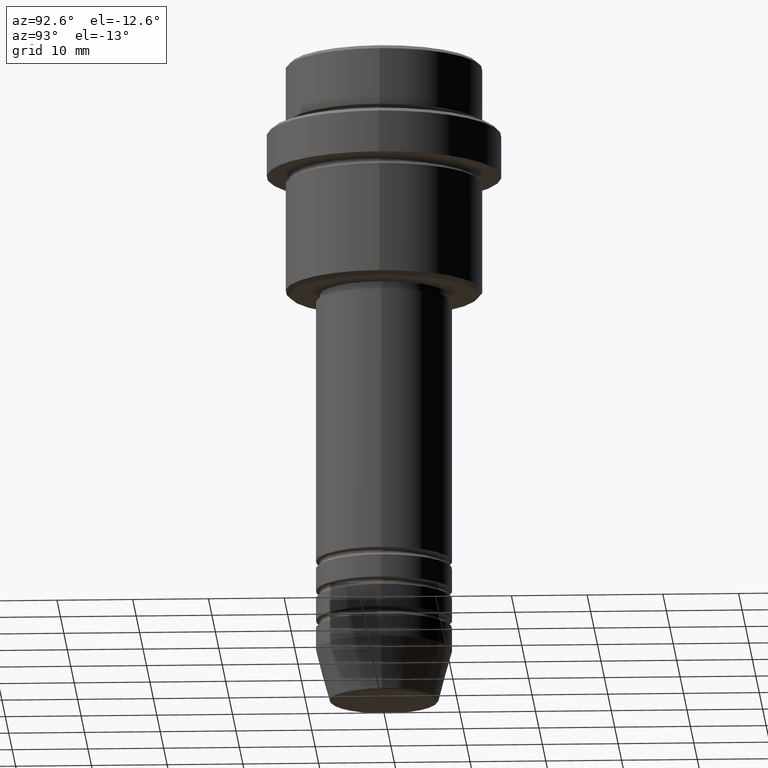
[diagram: clean part render]
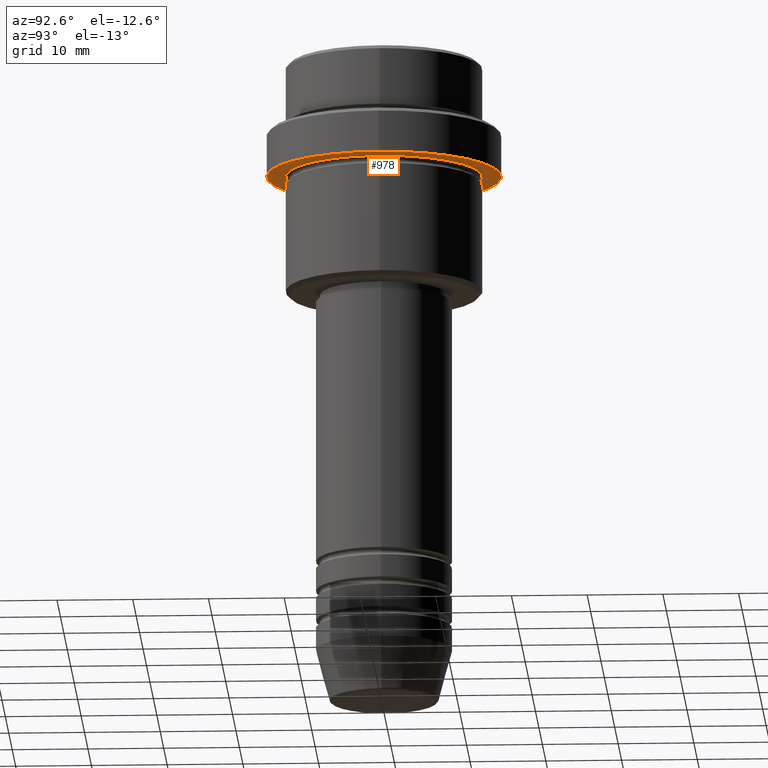
[diagram: same view with one face highlighted and labeled with its STEP entity id]
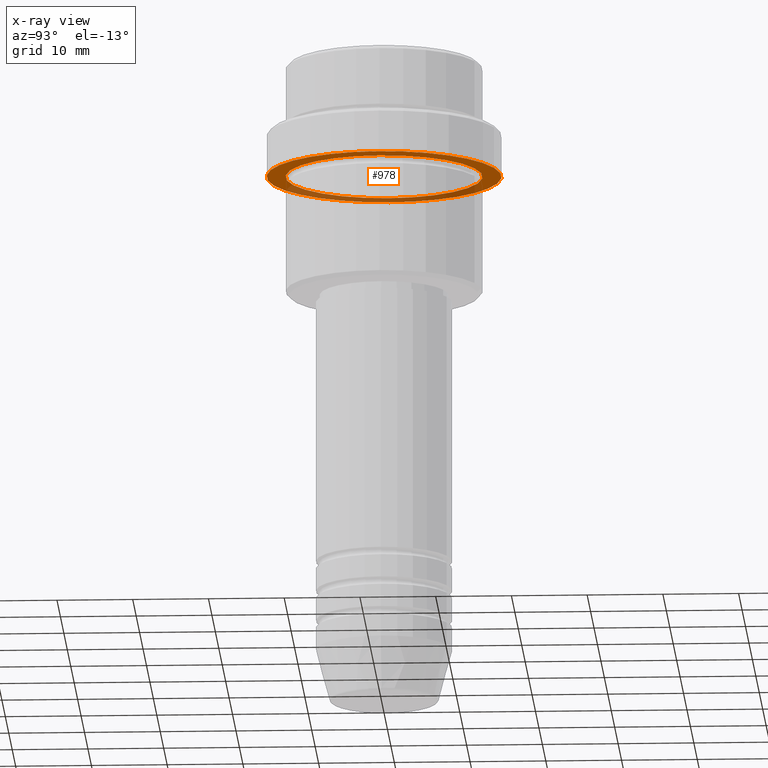
[diagram: x-ray of the same camera — body ghosted, the highlighted face saturated]
A machine part, auxiliary view. The second image highlights one B-rep face of the part: STEP entity #978.
The next image is the same camera in x-ray: the body ghosted, the highlighted face saturated — about 34% of this face is hidden behind the body in this view.
In plain terms, the highlighted planar face has unit normal (0, 0, -1).
Its self-contained STEP definition (entity closure, byte-faithful):
#93 = CARTESIAN_POINT ( 'NONE',  ( -15.50000000000000000, 1.898202538678397557E-15, -15.00000000000000178 ) ) ;
#96 = CIRCLE ( 'NONE', #558, 15.50000000000000000 ) ;
#139 = CARTESIAN_POINT ( 'NONE',  ( 0.000000000000000000, 0.000000000000000000, -15.00000000000000178 ) ) ;
#163 = CIRCLE ( 'NONE', #1010, 12.99999999999999467 ) ;
#177 = CARTESIAN_POINT ( 'NONE',  ( 12.99999999999999467, 1.592040838891558504E-15, -15.00000000000000000 ) ) ;
#210 = ORIENTED_EDGE ( 'NONE', *, *, #426, .F. ) ;
#254 = CARTESIAN_POINT ( 'NONE',  ( 0.000000000000000000, 15.50000000000000000, -15.00000000000000000 ) ) ;
#279 = AXIS2_PLACEMENT_3D ( 'NONE', #254, #337, #991 ) ;
#337 = DIRECTION ( 'NONE',  ( 0.000000000000000000, 0.000000000000000000, -1.000000000000000000 ) ) ;
#363 = PLANE ( 'NONE',  #279 ) ;
#413 = VERTEX_POINT ( 'NONE', #437 ) ;
#423 = DIRECTION ( 'NONE',  ( -1.000000000000000000, 0.000000000000000000, 0.000000000000000000 ) ) ;
#426 = EDGE_CURVE ( 'NONE', #413, #905, #993, .T. ) ;
#437 = CARTESIAN_POINT ( 'NONE',  ( 15.50000000000000000, 0.000000000000000000, -15.00000000000000178 ) ) ;
#472 = DIRECTION ( 'NONE',  ( 1.000000000000000000, 0.000000000000000000, 0.000000000000000000 ) ) ;
#499 = DIRECTION ( 'NONE',  ( -0.000000000000000000, -0.000000000000000000, 1.000000000000000000 ) ) ;
#528 = EDGE_LOOP ( 'NONE', ( #850, #551 ) ) ;
#530 = CARTESIAN_POINT ( 'NONE',  ( 0.000000000000000000, 0.000000000000000000, -15.00000000000000000 ) ) ;
#533 = CARTESIAN_POINT ( 'NONE',  ( -12.99999999999999467, 0.000000000000000000, -15.00000000000000000 ) ) ;
#535 = EDGE_LOOP ( 'NONE', ( #210, #605 ) ) ;
#551 = ORIENTED_EDGE ( 'NONE', *, *, #1132, .T. ) ;
#558 = AXIS2_PLACEMENT_3D ( 'NONE', #139, #1222, #472 ) ;
#605 = ORIENTED_EDGE ( 'NONE', *, *, #972, .F. ) ;
#687 = AXIS2_PLACEMENT_3D ( 'NONE', #530, #962, #423 ) ;
#794 = EDGE_CURVE ( 'NONE', #907, #1102, #1056, .T. ) ;
#850 = ORIENTED_EDGE ( 'NONE', *, *, #794, .T. ) ;
#877 = AXIS2_PLACEMENT_3D ( 'NONE', #1120, #1340, #884 ) ;
#884 = DIRECTION ( 'NONE',  ( 1.000000000000000000, 0.000000000000000000, 0.000000000000000000 ) ) ;
#905 = VERTEX_POINT ( 'NONE', #93 ) ;
#907 = VERTEX_POINT ( 'NONE', #533 ) ;
#962 = DIRECTION ( 'NONE',  ( -0.000000000000000000, -0.000000000000000000, 1.000000000000000000 ) ) ;
#972 = EDGE_CURVE ( 'NONE', #905, #413, #96, .T. ) ;
#978 = ADVANCED_FACE ( 'NONE', ( #1334, #1115 ), #363, .T. ) ;
#991 = DIRECTION ( 'NONE',  ( -1.000000000000000000, 0.000000000000000000, -0.000000000000000000 ) ) ;
#993 = CIRCLE ( 'NONE', #877, 15.50000000000000000 ) ;
#1010 = AXIS2_PLACEMENT_3D ( 'NONE', #1136, #499, #1060 ) ;
#1056 = CIRCLE ( 'NONE', #687, 12.99999999999999467 ) ;
#1060 = DIRECTION ( 'NONE',  ( -1.000000000000000000, 0.000000000000000000, 0.000000000000000000 ) ) ;
#1102 = VERTEX_POINT ( 'NONE', #177 ) ;
#1115 = FACE_OUTER_BOUND ( 'NONE', #535, .T. ) ;
#1120 = CARTESIAN_POINT ( 'NONE',  ( 0.000000000000000000, 0.000000000000000000, -15.00000000000000178 ) ) ;
#1132 = EDGE_CURVE ( 'NONE', #1102, #907, #163, .T. ) ;
#1136 = CARTESIAN_POINT ( 'NONE',  ( 0.000000000000000000, 0.000000000000000000, -15.00000000000000000 ) ) ;
#1222 = DIRECTION ( 'NONE',  ( -0.000000000000000000, -0.000000000000000000, 1.000000000000000000 ) ) ;
#1334 = FACE_BOUND ( 'NONE', #528, .T. ) ;
#1340 = DIRECTION ( 'NONE',  ( -0.000000000000000000, -0.000000000000000000, 1.000000000000000000 ) ) ;